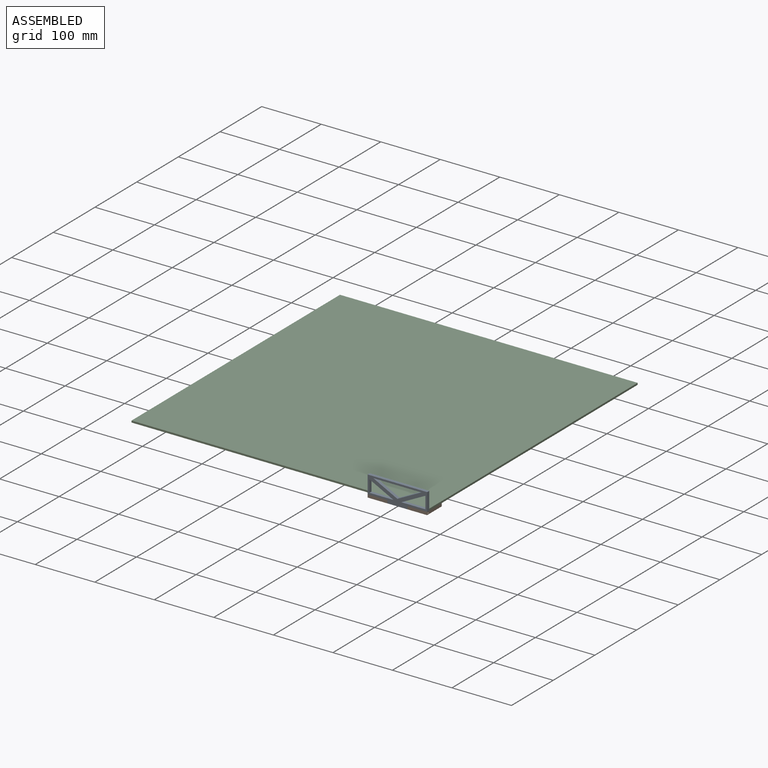
[diagram: assembled view]
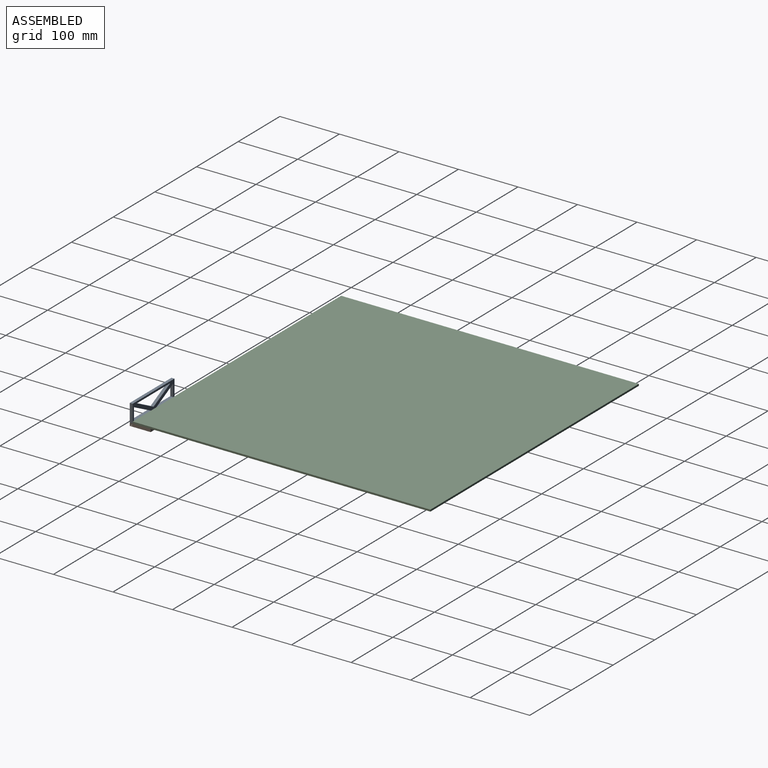
[diagram: assembled view, second angle]
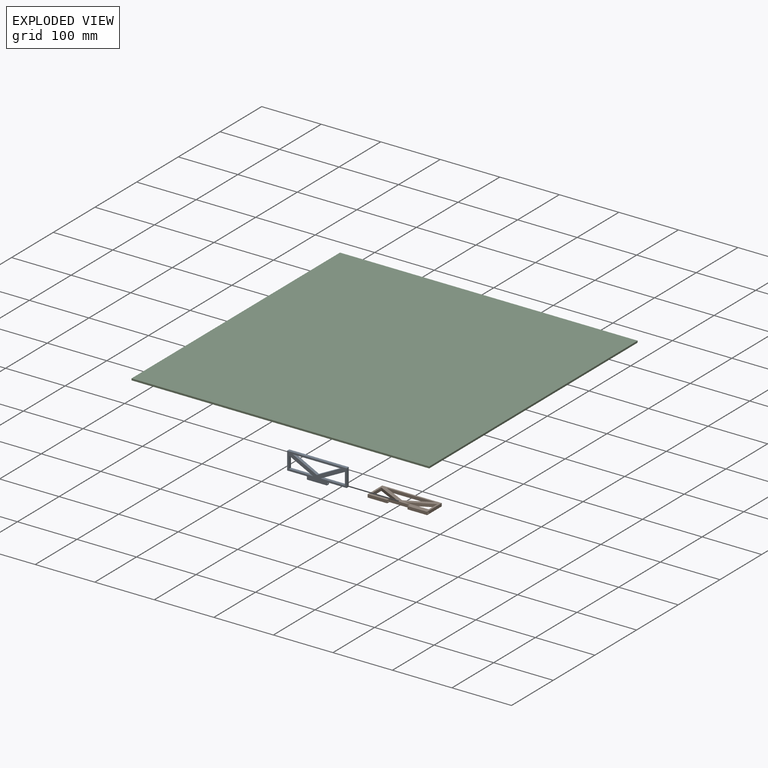
[diagram: exploded view]
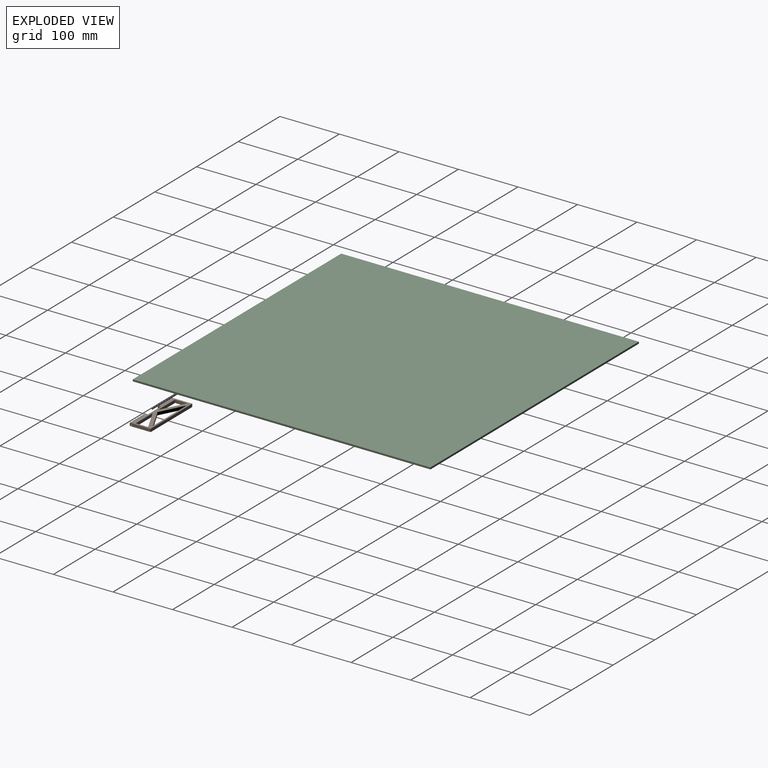
[diagram: exploded view, second angle]
ASSEMBLY  parts=3 mates=2
PART A: 20 faces, bbox 100x5x35 mm
  f0: plane 100x35mm, normal (0,-1,0), area 1500.3mm2, adj f2,f3,f4,f5,f6,f7,f8,f9
  f1: plane 100x35mm, normal (0,1,0), area 1500.3mm2, adj f2,f3,f4,f5,f6,f7,f8,f9
  f2: plane 33.5x5mm, normal (0,0,-1), area 167.5mm2, adj f0,f1,f8,f9
  f3: plane 33.25x5mm, normal (0,0,-1), area 166.3mm2, adj f0,f1,f7,f9
  f4: plane 33.25x5mm, normal (0,0,-1), area 166.3mm2, adj f0,f1,f6,f8
  f5: plane 100x5mm, normal (0,0,1), area 500mm2, adj f0,f1,f6,f7
  f6: plane 30x5mm, normal (-1,0,0), area 150mm2, adj f0,f1,f4,f5
  f7: plane 30x5mm, normal (1,0,0), area 150mm2, adj f0,f1,f3,f5
  f8: plane 5x5mm, normal (-1,0,0), area 17.9mm2, adj f0,f1,f2,f4,f10
  f9: plane 5x5mm, normal (1,0,0), area 17.9mm2, adj f0,f1,f2,f3,f10
  f10: cylinder r=1.5mm len=33.5mm, axis (-1,0,0), area 315.7mm2, adj f8,f9
  f11: plane 40.4x20.63mm, normal (0.45,0,-0.89), area 226.8mm2, adj f0,f1,f12,f13
  f12: plane 20.63x5mm, normal (-1,0,0), area 103.2mm2, adj f0,f1,f11,f13
  f13: plane 40.4x5mm, normal (0,0,1), area 202mm2, adj f0,f1,f11,f12
  f14: plane 40.4x5mm, normal (0,0,1), area 202mm2, adj f0,f1,f15,f16
  f15: plane 20.63x5mm, normal (1,0,0), area 103.2mm2, adj f0,f1,f14,f16
  f16: plane 40.4x20.63mm, normal (-0.45,0,-0.89), area 226.8mm2, adj f0,f1,f14,f15
  f17: plane 80.81x5mm, normal (0,0,-1), area 404mm2, adj f0,f1,f18,f19
  f18: plane 40.4x20.63mm, normal (-0.45,0,0.89), area 226.8mm2, adj f0,f1,f17,f19
  f19: plane 40.4x20.63mm, normal (0.45,0,0.89), area 226.8mm2, adj f0,f1,f17,f18
PART B: 21 faces, bbox 100x35x5 mm
  f0: plane 100x35mm, normal (0,0,1), area 1662.8mm2, adj f2,f3,f4,f5,f6,f8,f9,f11
  f1: plane 100x35mm, normal (0,0,-1), area 1662.8mm2, adj f2,f3,f4,f5,f6,f8,f9,f11
  f2: plane 34x5mm, normal (0,-1,0), area 170mm2, adj f0,f1,f8,f11
  f3: plane 35x5mm, normal (-1,0,0), area 167.9mm2, adj f0,f1,f5,f9,f10
  f4: plane 35x5mm, normal (1,0,0), area 167.9mm2, adj f0,f1,f5,f6,f7
  f5: plane 100x5mm, normal (0,1,0), area 500mm2, adj f0,f1,f3,f4
  f6: plane 33x5mm, normal (0,-1,0), area 165mm2, adj f0,f1,f4,f8
  f7: cylinder r=1.5mm len=33mm, axis (1,0,0), area 311mm2, adj f4,f8
  f8: plane 5x5mm, normal (-1,0,0), area 17.9mm2, adj f0,f1,f2,f6,f7
  f9: plane 33x5mm, normal (0,-1,0), area 165mm2, adj f0,f1,f3,f11
  f10: cylinder r=1.5mm len=33mm, axis (-1,0,0), area 311mm2, adj f3,f11
  f11: plane 5x5mm, normal (1,0,0), area 17.9mm2, adj f0,f1,f2,f9,f10
  f12: plane 80.81x5mm, normal (0,-1,0), area 404mm2, adj f0,f1,f13,f14
  f13: plane 40.4x20.63mm, normal (0.45,0.89,0), area 226.8mm2, adj f0,f1,f12,f14
  f14: plane 40.4x20.63mm, normal (-0.45,0.89,0), area 226.8mm2, adj f0,f1,f12,f13
  f15: plane 40.4x5mm, normal (0,1,0), area 202mm2, adj f0,f1,f16,f17
  f16: plane 40.4x20.63mm, normal (-0.45,-0.89,0), area 226.8mm2, adj f0,f1,f15,f17
  f17: plane 20.63x5mm, normal (1,0,0), area 103.2mm2, adj f0,f1,f15,f16
  f18: plane 40.4x5mm, normal (0,1,0), area 202mm2, adj f0,f1,f19,f20
  f19: plane 20.63x5mm, normal (-1,0,0), area 103.2mm2, adj f0,f1,f18,f20
  f20: plane 40.4x20.63mm, normal (0.45,-0.89,0), area 226.8mm2, adj f0,f1,f18,f19
PART C: 6 faces, bbox 500x500x3 mm
  f0: plane 500x3mm, normal (-1,0,0), area 1500mm2, adj f1,f3,f4,f5
  f1: plane 500x3mm, normal (0,-1,0), area 1500mm2, adj f0,f2,f4,f5
  f2: plane 500x3mm, normal (1,0,0), area 1500mm2, adj f1,f3,f4,f5
  f3: plane 500x3mm, normal (0,1,0), area 1500mm2, adj f0,f2,f4,f5
  f4: plane 500x500mm, normal (0,0,1), area 250000mm2, adj f0,f1,f2,f3
  f5: plane 500x500mm, normal (0,0,-1), area 250000mm2, adj f0,f1,f2,f3
PLACE A t=(12.73,-357.91,114.14)mm
PLACE B t=(12.73,-357.91,114.14)mm
PLACE C t=(-187.27,-122.91,119.14)mm fixed
MATE parallel B.f0 <-> C.f5  axis (0,0,1) through (62.73,-377.91,119.14)mm
MATE parallel A.f10 <-> B.f7  axis (1,0,0) through (29.48,-375.41,116.64)mm
